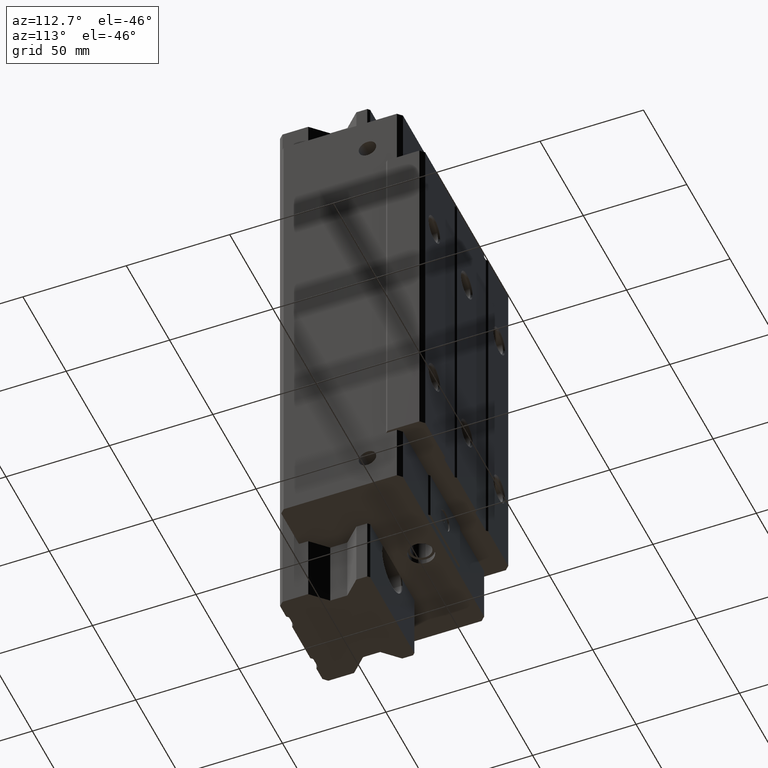
[diagram: clean part render]
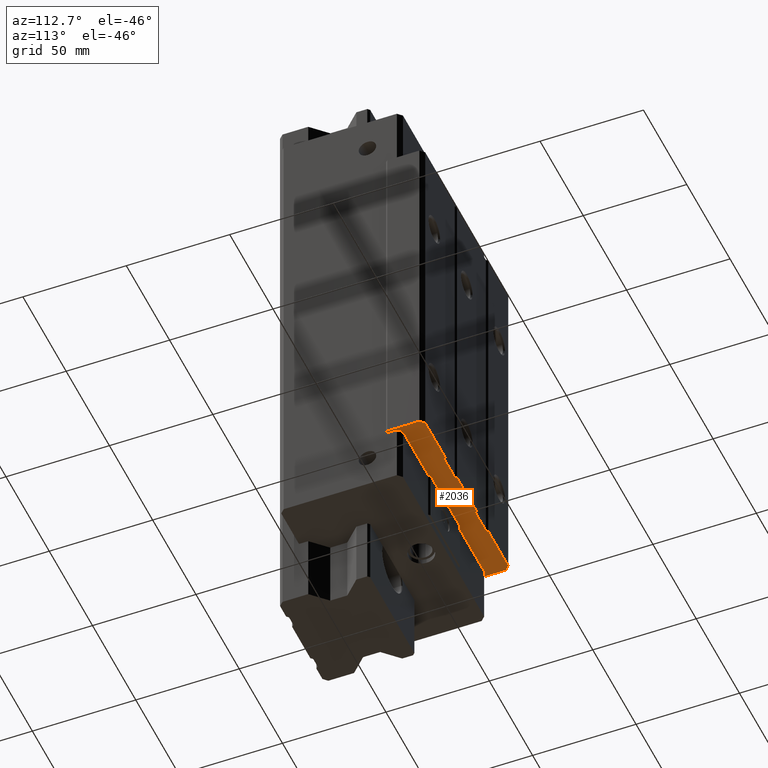
[diagram: same view with one face highlighted and labeled with its STEP entity id]
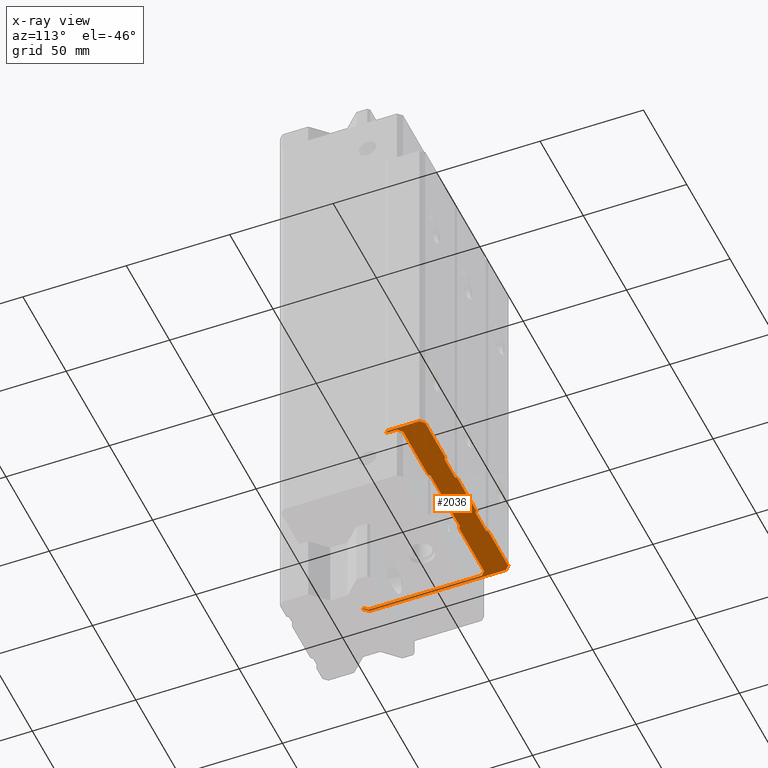
[diagram: x-ray of the same camera — body ghosted, the highlighted face saturated]
A machine part, auxiliary view. The second image highlights one B-rep face of the part: STEP entity #2036.
The next image is the same camera in x-ray: the body ghosted, the highlighted face saturated — about 4% of this face is hidden behind the body in this view.
In plain terms, the highlighted planar face has unit normal (0, 0, 1).
Its self-contained STEP definition (entity closure, byte-faithful):
#129=DIRECTION('',(-2.459558115213E-14,1.E0,0.E0));
#130=VECTOR('',#129,5.200027258789E0);
#131=CARTESIAN_POINT('',(4.900001907349E1,-8.499972814697E0,-8.69E1));
#132=LINE('',#131,#130);
#157=DIRECTION('',(-1.E0,0.E0,0.E0));
#158=VECTOR('',#157,2.906559662029E1);
#159=CARTESIAN_POINT('',(4.690001907349E1,-1.199945555909E0,-8.69E1));
#160=LINE('',#159,#158);
#169=DIRECTION('',(-1.E0,0.E0,0.E0));
#170=VECTOR('',#169,2.906559662029E1);
#171=CARTESIAN_POINT('',(-1.783442245320E1,-1.199945555909E0,-8.69E1));
#172=LINE('',#171,#170);
#177=DIRECTION('',(7.071094326102E-1,7.071041297530E-1,0.E0));
#178=VECTOR('',#177,1.131358121582E0);
#179=CARTESIAN_POINT('',(-1.783442245320E1,-1.199945555909E0,-8.69E1));
#180=LINE('',#179,#178);
#181=DIRECTION('',(7.071094326099E-1,-7.071041297533E-1,0.E0));
#182=VECTOR('',#181,1.131358121582E0);
#183=CARTESIAN_POINT('',(1.703442845377E1,-3.999575559086E-1,-8.69E1));
#184=LINE('',#183,#182);
#185=DIRECTION('',(7.071067811867E-1,-7.071067811864E-1,0.E0));
#186=VECTOR('',#185,2.969848480983E0);
#187=CARTESIAN_POINT('',(4.690001907349E1,-1.199945555909E0,-8.69E1));
#188=LINE('',#187,#186);
#189=DIRECTION('',(7.071067811866E-1,7.071067811865E-1,0.E0));
#190=VECTOR('',#189,1.414213562373E0);
#191=CARTESIAN_POINT('',(4.900001907349E1,-8.499972814697E0,-8.69E1));
#192=LINE('',#191,#190);
#193=DIRECTION('',(0.E0,1.E0,0.E0));
#194=VECTOR('',#193,1.550006103516E1);
#195=CARTESIAN_POINT('',(5.000001907349E1,-7.499972814697E0,-8.69E1));
#196=LINE('',#195,#194);
#197=DIRECTION('',(-7.071076928335E-1,7.071058695384E-1,0.E0));
#198=VECTOR('',#197,2.828352946299E0);
#199=CARTESIAN_POINT('',(5.000001907349E1,8.000088220459E0,-8.69E1));
#200=LINE('',#199,#198);
#201=DIRECTION('',(-1.E0,1.654617526299E-13,0.E0));
#202=VECTOR('',#201,2.319996657191E1);
#203=CARTESIAN_POINT('',(4.800006894711E1,1.000003318991E1,-8.69E1));
#204=LINE('',#203,#202);
#205=DIRECTION('',(-7.071164436521E-1,-7.070971185889E-1,0.E0));
#206=VECTOR('',#205,1.131378849886E0);
#207=CARTESIAN_POINT('',(2.480010237520E1,1.000003318992E1,-8.69E1));
#208=LINE('',#207,#206);
#209=DIRECTION('',(-1.E0,1.721922321698E-7,0.E0));
#210=VECTOR('',#209,1.200003837647E1);
#211=CARTESIAN_POINT('',(2.400008578645E1,9.200038465130E0,-8.69E1));
#212=LINE('',#211,#210);
#213=DIRECTION('',(-7.071092709556E-1,7.071042914088E-1,0.E0));
#214=VECTOR('',#213,1.131377538456E0);
#215=CARTESIAN_POINT('',(1.200004740998E1,9.200040531444E0,-8.69E1));
#216=LINE('',#215,#214);
#217=DIRECTION('',(-1.E0,2.228368282394E-14,0.E0));
#218=VECTOR('',#217,2.240007972718E1);
#219=CARTESIAN_POINT('',(1.120003986359E1,1.000004244409E1,-8.69E1));
#220=LINE('',#219,#218);
#221=DIRECTION('',(-7.071030503578E-1,-7.071105119956E-1,0.E0));
#222=VECTOR('',#221,1.131359980383E0);
#223=CARTESIAN_POINT('',(-1.120003986359E1,1.000004244409E1,-8.69E1));
#224=LINE('',#223,#222);
#225=DIRECTION('',(-9.999999999999E-1,-3.797014687990E-7,0.E0));
#226=VECTOR('',#225,1.200006170632E1);
#227=CARTESIAN_POINT('',(-1.200002795677E1,9.200045909110E0,-8.69E1));
#228=LINE('',#227,#226);
#229=DIRECTION('',(-7.071160065696E-1,7.070975556831E-1,0.E0));
#230=VECTOR('',#229,1.131374066875E0);
#231=CARTESIAN_POINT('',(-2.400008966310E1,9.200041352669E0,-8.69E1));
#232=LINE('',#231,#230);
#233=DIRECTION('',(-1.E0,-1.581878671603E-13,0.E0));
#234=VECTOR('',#233,2.319996657191E1);
#235=CARTESIAN_POINT('',(-2.480010237520E1,1.000003318992E1,-8.69E1));
#236=LINE('',#235,#234);
#237=DIRECTION('',(-7.071076928336E-1,-7.071058695383E-1,0.E0));
#238=VECTOR('',#237,2.828352946300E0);
#239=CARTESIAN_POINT('',(-4.800006894711E1,1.000003318992E1,-8.69E1));
#240=LINE('',#239,#238);
#241=DIRECTION('',(3.875682469078E-14,-1.E0,0.E0));
#242=VECTOR('',#241,6.600008822046E1);
#243=CARTESIAN_POINT('',(-5.000001907349E1,8.000088220461E0,-8.69E1));
#244=LINE('',#243,#242);
#245=DIRECTION('',(7.071067811870E-1,-7.071067811861E-1,0.E0));
#246=VECTOR('',#245,2.828423790029E0);
#247=CARTESIAN_POINT('',(-5.000001907349E1,-5.8E1,-8.69E1));
#248=LINE('',#247,#246);
#249=DIRECTION('',(9.999999999555E-1,9.431864324811E-6,0.E0));
#250=VECTOR('',#249,1.000016506056E0);
#251=CARTESIAN_POINT('',(-4.800002143149E1,-5.999999764199E1,-8.69E1));
#252=LINE('',#251,#250);
#253=DIRECTION('',(-7.071038633279E-1,7.071096990331E-1,0.E0));
#254=VECTOR('',#253,2.828458804623E0);
#255=CARTESIAN_POINT('',(-4.700000492548E1,-5.999998820997E1,-8.69E1));
#256=LINE('',#255,#254);
#257=DIRECTION('',(7.071067811866E-1,7.071067811865E-1,0.E0));
#258=VECTOR('',#257,2.969848480983E0);
#259=CARTESIAN_POINT('',(-4.900001907349E1,-3.299945555908E0,-8.69E1));
#260=LINE('',#259,#258);
#285=DIRECTION('',(-1.E0,0.E0,0.E0));
#286=VECTOR('',#285,3.406885690754E1);
#287=CARTESIAN_POINT('',(1.703442845377E1,-3.999575559086E-1,-8.69E1));
#288=LINE('',#287,#286);
#573=DIRECTION('',(0.E0,-1.E0,0.E0));
#574=VECTOR('',#573,5.4700012E1);
#575=CARTESIAN_POINT('',(-4.900001907349E1,-3.299945555908E0,-8.69E1));
#576=LINE('',#575,#574);
#1357=CARTESIAN_POINT('',(4.900001907349E1,-3.299945555908E0,-8.69E1));
#1359=VERTEX_POINT('',#1357);
#1367=CARTESIAN_POINT('',(4.900001907349E1,-8.499972814697E0,-8.69E1));
#1368=VERTEX_POINT('',#1367);
#1370=CARTESIAN_POINT('',(4.690001907349E1,-1.199945555909E0,-8.69E1));
#1372=VERTEX_POINT('',#1370);
#1373=CARTESIAN_POINT('',(1.783442245320E1,-1.199945555909E0,-8.69E1));
#1374=VERTEX_POINT('',#1373);
#1379=CARTESIAN_POINT('',(-1.783442245320E1,-1.199945555909E0,-8.69E1));
#1380=VERTEX_POINT('',#1379);
#1381=CARTESIAN_POINT('',(-4.690001907349E1,-1.199945555909E0,-8.69E1));
#1382=VERTEX_POINT('',#1381);
#1385=CARTESIAN_POINT('',(-1.703442845377E1,-3.999575559088E-1,-8.69E1));
#1386=VERTEX_POINT('',#1385);
#1387=CARTESIAN_POINT('',(1.703442845377E1,-3.999575559086E-1,-8.69E1));
#1388=VERTEX_POINT('',#1387);
#1389=CARTESIAN_POINT('',(5.000001907349E1,-7.499972814697E0,-8.69E1));
#1390=VERTEX_POINT('',#1389);
#1391=CARTESIAN_POINT('',(5.000001907349E1,8.000088220459E0,-8.69E1));
#1392=VERTEX_POINT('',#1391);
#1393=CARTESIAN_POINT('',(4.800006894711E1,1.000003318991E1,-8.69E1));
#1394=VERTEX_POINT('',#1393);
#1395=CARTESIAN_POINT('',(2.480010237520E1,1.000003318992E1,-8.69E1));
#1396=VERTEX_POINT('',#1395);
#1397=CARTESIAN_POINT('',(2.400008578645E1,9.200038465130E0,-8.69E1));
#1398=VERTEX_POINT('',#1397);
#1399=CARTESIAN_POINT('',(1.200004740998E1,9.200040531444E0,-8.69E1));
#1400=VERTEX_POINT('',#1399);
#1401=CARTESIAN_POINT('',(1.120003986359E1,1.000004244409E1,-8.69E1));
#1402=VERTEX_POINT('',#1401);
#1403=CARTESIAN_POINT('',(-1.120003986359E1,1.000004244409E1,-8.69E1));
#1404=VERTEX_POINT('',#1403);
#1405=CARTESIAN_POINT('',(-1.200002795677E1,9.200045909110E0,-8.69E1));
#1406=VERTEX_POINT('',#1405);
#1407=CARTESIAN_POINT('',(-2.400008966310E1,9.200041352669E0,-8.69E1));
#1408=VERTEX_POINT('',#1407);
#1409=CARTESIAN_POINT('',(-2.480010237520E1,1.000003318992E1,-8.69E1));
#1410=VERTEX_POINT('',#1409);
#1411=CARTESIAN_POINT('',(-4.800006894711E1,1.000003318992E1,-8.69E1));
#1412=VERTEX_POINT('',#1411);
#1413=CARTESIAN_POINT('',(-5.000001907349E1,8.000088220461E0,-8.69E1));
#1414=VERTEX_POINT('',#1413);
#1415=CARTESIAN_POINT('',(-5.000001907349E1,-5.8E1,-8.69E1));
#1416=VERTEX_POINT('',#1415);
#1417=CARTESIAN_POINT('',(-4.800002143149E1,-5.999999764199E1,-8.69E1));
#1418=VERTEX_POINT('',#1417);
#1419=CARTESIAN_POINT('',(-4.700000492548E1,-5.999998820997E1,-8.69E1));
#1420=VERTEX_POINT('',#1419);
#1421=CARTESIAN_POINT('',(-4.900001907349E1,-5.799995755591E1,-8.69E1));
#1422=VERTEX_POINT('',#1421);
#1423=CARTESIAN_POINT('',(-4.900001907349E1,-3.299945555908E0,-8.69E1));
#1424=VERTEX_POINT('',#1423);
#1981=CARTESIAN_POINT('',(0.E0,0.E0,-8.69E1));
#1982=DIRECTION('',(0.E0,0.E0,1.E0));
#1983=DIRECTION('',(1.E0,0.E0,0.E0));
#1984=AXIS2_PLACEMENT_3D('',#1981,#1982,#1983);
#1985=PLANE('',#1984);
#1986=ORIENTED_EDGE('',*,*,#1972,.F.);
#1988=ORIENTED_EDGE('',*,*,#1987,.T.);
#1990=ORIENTED_EDGE('',*,*,#1989,.F.);
#1992=ORIENTED_EDGE('',*,*,#1991,.T.);
#1993=ORIENTED_EDGE('',*,*,#1964,.F.);
#1994=ORIENTED_EDGE('',*,*,#1953,.T.);
#1995=ORIENTED_EDGE('',*,*,#1926,.F.);
#1997=ORIENTED_EDGE('',*,*,#1996,.T.);
#1999=ORIENTED_EDGE('',*,*,#1998,.T.);
#2001=ORIENTED_EDGE('',*,*,#2000,.T.);
#2003=ORIENTED_EDGE('',*,*,#2002,.T.);
#2005=ORIENTED_EDGE('',*,*,#2004,.T.);
#2007=ORIENTED_EDGE('',*,*,#2006,.T.);
#2009=ORIENTED_EDGE('',*,*,#2008,.T.);
#2011=ORIENTED_EDGE('',*,*,#2010,.T.);
#2013=ORIENTED_EDGE('',*,*,#2012,.T.);
#2015=ORIENTED_EDGE('',*,*,#2014,.T.);
#2017=ORIENTED_EDGE('',*,*,#2016,.T.);
#2019=ORIENTED_EDGE('',*,*,#2018,.T.);
#2021=ORIENTED_EDGE('',*,*,#2020,.T.);
#2023=ORIENTED_EDGE('',*,*,#2022,.T.);
#2025=ORIENTED_EDGE('',*,*,#2024,.T.);
#2027=ORIENTED_EDGE('',*,*,#2026,.T.);
#2029=ORIENTED_EDGE('',*,*,#2028,.T.);
#2031=ORIENTED_EDGE('',*,*,#2030,.F.);
#2033=ORIENTED_EDGE('',*,*,#2032,.T.);
#2034=EDGE_LOOP('',(#1986,#1988,#1990,#1992,#1993,#1994,#1995,#1997,#1999,#2001,
#2003,#2005,#2007,#2009,#2011,#2013,#2015,#2017,#2019,#2021,#2023,#2025,#2027,
#2029,#2031,#2033));
#2035=FACE_OUTER_BOUND('',#2034,.F.);
#2036=ADVANCED_FACE('',(#2035),#1985,.F.);
#1926=EDGE_CURVE('',#1368,#1359,#132,.T.);
#1953=EDGE_CURVE('',#1372,#1359,#188,.T.);
#1964=EDGE_CURVE('',#1372,#1374,#160,.T.);
#1972=EDGE_CURVE('',#1380,#1382,#172,.T.);
#1987=EDGE_CURVE('',#1380,#1386,#180,.T.);
#1989=EDGE_CURVE('',#1388,#1386,#288,.T.);
#1991=EDGE_CURVE('',#1388,#1374,#184,.T.);
#1996=EDGE_CURVE('',#1368,#1390,#192,.T.);
#1998=EDGE_CURVE('',#1390,#1392,#196,.T.);
#2000=EDGE_CURVE('',#1392,#1394,#200,.T.);
#2002=EDGE_CURVE('',#1394,#1396,#204,.T.);
#2004=EDGE_CURVE('',#1396,#1398,#208,.T.);
#2006=EDGE_CURVE('',#1398,#1400,#212,.T.);
#2008=EDGE_CURVE('',#1400,#1402,#216,.T.);
#2010=EDGE_CURVE('',#1402,#1404,#220,.T.);
#2012=EDGE_CURVE('',#1404,#1406,#224,.T.);
#2014=EDGE_CURVE('',#1406,#1408,#228,.T.);
#2016=EDGE_CURVE('',#1408,#1410,#232,.T.);
#2018=EDGE_CURVE('',#1410,#1412,#236,.T.);
#2020=EDGE_CURVE('',#1412,#1414,#240,.T.);
#2022=EDGE_CURVE('',#1414,#1416,#244,.T.);
#2024=EDGE_CURVE('',#1416,#1418,#248,.T.);
#2026=EDGE_CURVE('',#1418,#1420,#252,.T.);
#2028=EDGE_CURVE('',#1420,#1422,#256,.T.);
#2030=EDGE_CURVE('',#1424,#1422,#576,.T.);
#2032=EDGE_CURVE('',#1424,#1382,#260,.T.);